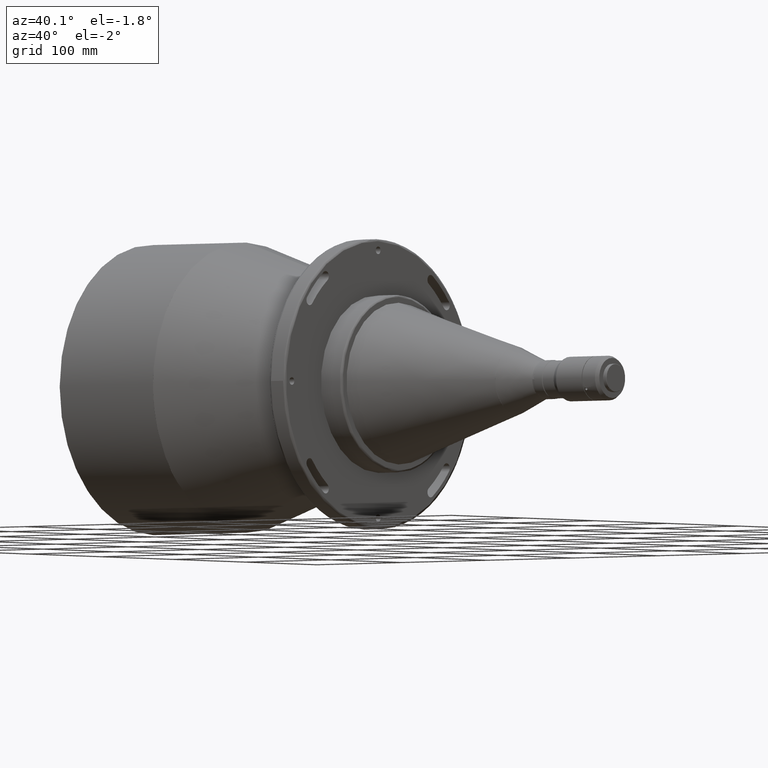
[diagram: clean part render]
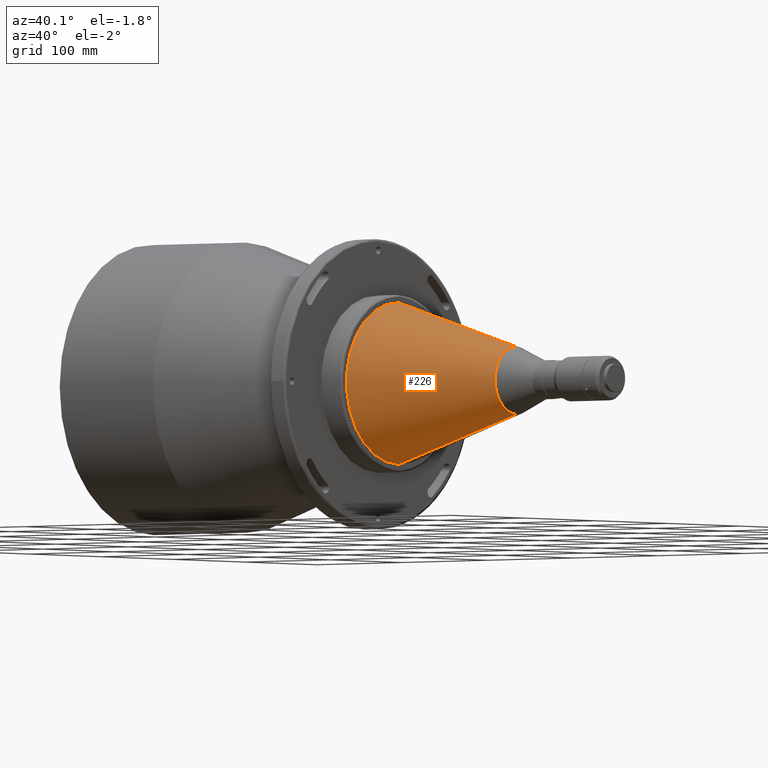
[diagram: same view with one face highlighted and labeled with its STEP entity id]
A machine part, auxiliary view. The second image highlights one B-rep face of the part: STEP entity #226.
In plain terms, the highlighted conical surface has half-angle 17 deg.
Its self-contained STEP definition (entity closure, byte-faithful):
#35 = DIRECTION ( 'NONE',  ( 1.000000000000000000, -0.0000000000000000000, -0.0000000000000000000 ) ) ;
#40 = CARTESIAN_POINT ( 'NONE',  ( 155.5147483420000200, 0.0000000000000000000, 30.19765119900000600 ) ) ;
#226 = ADVANCED_FACE ( 'NONE', ( #497 ), #838, .T. ) ;
#236 = CARTESIAN_POINT ( 'NONE',  ( 155.5147483420433600, -9.290462691037500800E-009, -30.19765119914149000 ) ) ;
#269 = CIRCLE ( 'NONE', #561, 30.19765119900000600 ) ;
#285 = CARTESIAN_POINT ( 'NONE',  ( 155.5147483420000800, 0.0000000000000000000, 0.0000000000000000000 ) ) ;
#497 = FACE_OUTER_BOUND ( 'NONE', #2612, .T. ) ;
#561 = AXIS2_PLACEMENT_3D ( 'NONE', #285, #35, #3124 ) ;
#565 = DIRECTION ( 'NONE',  ( -0.9563047559619837200, 0.0000000000000000000, 0.2923717047261769600 ) ) ;
#838 = CONICAL_SURFACE ( 'NONE', #3076, 30.19765119900000600, 0.2967059728426334500 ) ;
#974 = EDGE_CURVE ( 'NONE', #3017, #1365, #1033, .T. ) ;
#1020 = DIRECTION ( 'NONE',  ( 0.0000000000000000000, 0.0000000000000000000, 1.000000000000000000 ) ) ;
#1025 = EDGE_CURVE ( 'NONE', #3212, #1502, #269, .T. ) ;
#1033 = CIRCLE ( 'NONE', #3126, 72.50000000000000000 ) ;
#1134 = DIRECTION ( 'NONE',  ( -1.000000000000000000, 0.0000000000000000000, 0.0000000000000000000 ) ) ;
#1252 = VECTOR ( 'NONE', #3013, 1000.000000000000000 ) ;
#1303 = DIRECTION ( 'NONE',  ( 1.000000000000000000, -0.0000000000000000000, -0.0000000000000000000 ) ) ;
#1341 = EDGE_CURVE ( 'NONE', #1502, #1365, #1529, .T. ) ;
#1365 = VERTEX_POINT ( 'NONE', #1524 ) ;
#1371 = LINE ( 'NONE', #40, #2231 ) ;
#1395 = CARTESIAN_POINT ( 'NONE',  ( 17.14999999999999900, 0.0000000000000000000, 72.50000000000000000 ) ) ;
#1502 = VERTEX_POINT ( 'NONE', #236 ) ;
#1524 = CARTESIAN_POINT ( 'NONE',  ( 17.14999999999999900, 8.878689293818309300E-015, -72.50000000000000000 ) ) ;
#1529 = LINE ( 'NONE', #3002, #1252 ) ;
#1683 = ORIENTED_EDGE ( 'NONE', *, *, #2896, .T. ) ;
#2195 = ORIENTED_EDGE ( 'NONE', *, *, #1341, .F. ) ;
#2231 = VECTOR ( 'NONE', #565, 1000.000000000000000 ) ;
#2459 = ORIENTED_EDGE ( 'NONE', *, *, #1025, .F. ) ;
#2544 = CARTESIAN_POINT ( 'NONE',  ( 17.14999999999999900, 0.0000000000000000000, 0.0000000000000000000 ) ) ;
#2612 = EDGE_LOOP ( 'NONE', ( #2195, #2459, #1683, #2832 ) ) ;
#2832 = ORIENTED_EDGE ( 'NONE', *, *, #974, .T. ) ;
#2896 = EDGE_CURVE ( 'NONE', #3212, #3017, #1371, .T. ) ;
#3002 = CARTESIAN_POINT ( 'NONE',  ( 155.5147483420000200, 3.698145688262359100E-015, -30.19765119900000600 ) ) ;
#3013 = DIRECTION ( 'NONE',  ( -0.9563047559619837200, 3.580520723541677000E-017, -0.2923717047261769600 ) ) ;
#3017 = VERTEX_POINT ( 'NONE', #1395 ) ;
#3076 = AXIS2_PLACEMENT_3D ( 'NONE', #3146, #1134, #3161 ) ;
#3124 = DIRECTION ( 'NONE',  ( -1.838260560910647100E-015, 0.0000000000000000000, 1.000000000000000000 ) ) ;
#3126 = AXIS2_PLACEMENT_3D ( 'NONE', #2544, #1303, #1020 ) ;
#3146 = CARTESIAN_POINT ( 'NONE',  ( 155.5147483420000200, 0.0000000000000000000, 0.0000000000000000000 ) ) ;
#3161 = DIRECTION ( 'NONE',  ( 0.0000000000000000000, 0.0000000000000000000, 1.000000000000000000 ) ) ;
#3212 = VERTEX_POINT ( 'NONE', #3220 ) ;
#3220 = CARTESIAN_POINT ( 'NONE',  ( 155.5147483420433600, -1.355778335591746000E-009, 30.19765119914148600 ) ) ;